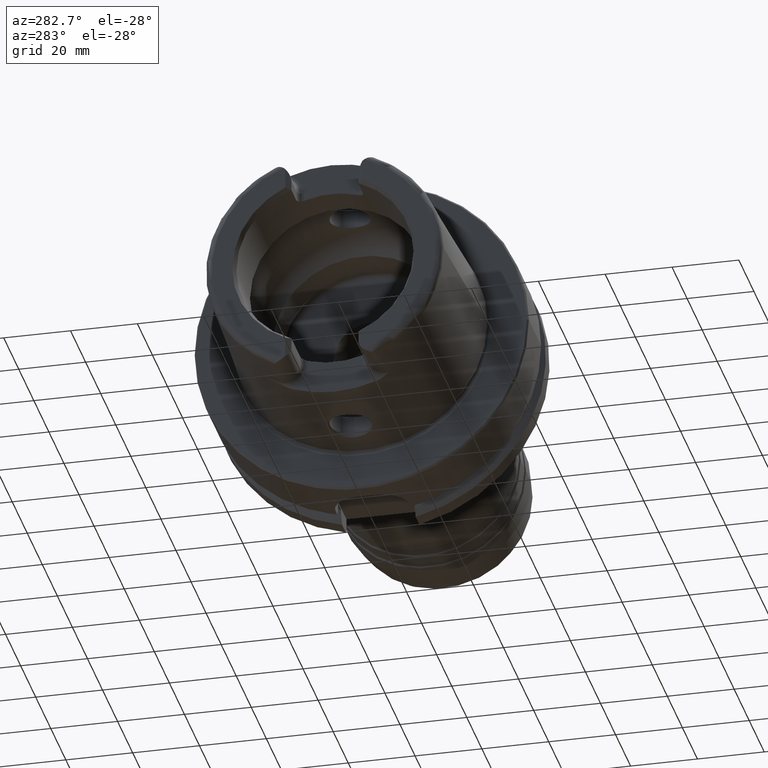
[diagram: clean part render]
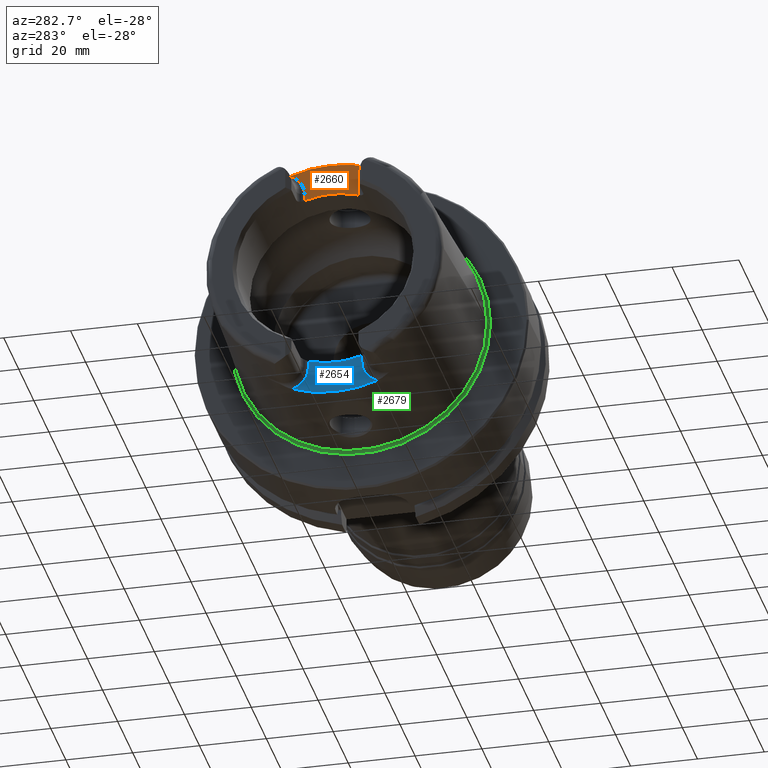
[diagram: same view with three faces highlighted in distinct colors, each labeled with its STEP entity id]
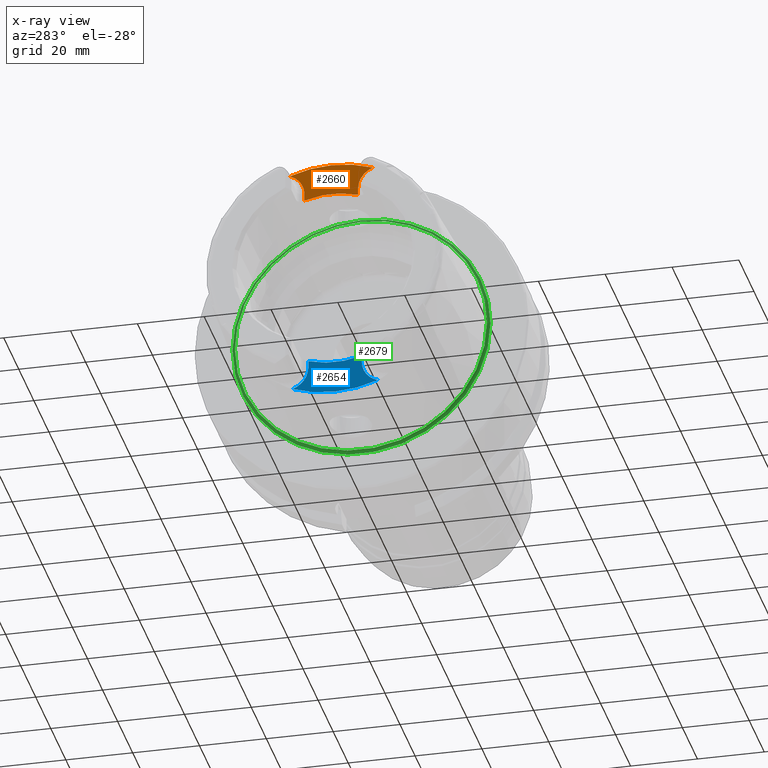
[diagram: x-ray of the same camera — body ghosted, the three highlighted faces saturated]
A machine part, auxiliary view with three faces highlighted in distinct colors.
The next image is the same camera in x-ray (body ghosted, the three faces saturated) — at least one of them is partly hidden behind the body in this view.
Their STEP definitions:

[orange] entity #2660 — the highlighted planar face has unit normal (-1, 0, 0).
#172=PLANE('',#3005);
#282=LINE('',#5490,#397);
#283=LINE('',#5519,#398);
#397=VECTOR('',#3726,10.);
#398=VECTOR('',#3739,10.);
#536=FACE_OUTER_BOUND('',#679,.T.);
#679=EDGE_LOOP('',(#2335,#2336,#2337,#2338,#2339,#2340));
#838=CIRCLE('',#2890,36.003493987976);
#886=CIRCLE('',#2981,6.88);
#888=CIRCLE('',#2984,6.88);
#898=CIRCLE('',#3006,26.5);
#1104=VERTEX_POINT('',#4654);
#1105=VERTEX_POINT('',#4671);
#1203=VERTEX_POINT('',#5487);
#1204=VERTEX_POINT('',#5489);
#1205=VERTEX_POINT('',#5504);
#1206=VERTEX_POINT('',#5508);
#1443=EDGE_CURVE('',#1104,#1105,#838,.T.);
#1588=EDGE_CURVE('',#1203,#1204,#282,.T.);
#1590=EDGE_CURVE('',#1105,#1203,#886,.T.);
#1592=EDGE_CURVE('',#1205,#1104,#888,.T.);
#1594=EDGE_CURVE('',#1206,#1205,#283,.T.);
#1610=EDGE_CURVE('',#1204,#1206,#898,.T.);
#2335=ORIENTED_EDGE('',*,*,#1590,.F.);
#2336=ORIENTED_EDGE('',*,*,#1443,.F.);
#2337=ORIENTED_EDGE('',*,*,#1592,.F.);
#2338=ORIENTED_EDGE('',*,*,#1594,.F.);
#2339=ORIENTED_EDGE('',*,*,#1610,.F.);
#2340=ORIENTED_EDGE('',*,*,#1588,.F.);
#2660=ADVANCED_FACE('',(#536),#172,.T.);
#2890=AXIS2_PLACEMENT_3D('',#4672,#3495,#3496);
#2981=AXIS2_PLACEMENT_3D('',#5502,#3729,#3730);
#2984=AXIS2_PLACEMENT_3D('',#5506,#3735,#3736);
#3005=AXIS2_PLACEMENT_3D('',#5567,#3782,#3783);
#3006=AXIS2_PLACEMENT_3D('',#5568,#3784,#3785);
#3495=DIRECTION('center_axis',(1.,0.,0.));
#3496=DIRECTION('ref_axis',(0.,1.,0.));
#3726=DIRECTION('',(0.,0.,-1.));
#3729=DIRECTION('center_axis',(-1.,0.,0.));
#3730=DIRECTION('ref_axis',(0.,0.564947834751706,0.82512662301574));
#3735=DIRECTION('center_axis',(-1.,0.,0.));
#3736=DIRECTION('ref_axis',(0.,-0.564947834751705,0.825126623015741));
#3739=DIRECTION('',(0.,0.,1.));
#3782=DIRECTION('center_axis',(-1.,0.,0.));
#3783=DIRECTION('ref_axis',(0.,0.,1.));
#3784=DIRECTION('center_axis',(-1.,0.,0.));
#3785=DIRECTION('ref_axis',(0.,1.,0.));
#4654=CARTESIAN_POINT('',(-40.,12.4227760464511,33.7923987701664));
#4671=CARTESIAN_POINT('',(-40.,-12.4227760464511,33.7923987701664));
#4672=CARTESIAN_POINT('Origin',(-40.,0.,0.));
#5487=CARTESIAN_POINT('',(-40.,-8.01,27.37));
#5489=CARTESIAN_POINT('',(-40.,-8.01,25.2604414054862));
#5490=CARTESIAN_POINT('',(-40.,-8.01,23.5));
#5502=CARTESIAN_POINT('Origin',(-40.,-14.89,27.37));
#5504=CARTESIAN_POINT('',(-40.,8.01,27.37));
#5506=CARTESIAN_POINT('Origin',(-40.,14.89,27.37));
#5508=CARTESIAN_POINT('',(-40.,8.01,25.2604414054862));
#5519=CARTESIAN_POINT('',(-40.,8.01,28.185));
#5567=CARTESIAN_POINT('Origin',(-40.,0.,29.));
#5568=CARTESIAN_POINT('Origin',(-40.,0.,0.));

[blue] entity #2654 — the highlighted planar face has unit normal (-1, 0, 0).
#170=PLANE('',#2994);
#284=LINE('',#5537,#399);
#286=LINE('',#5546,#401);
#399=VECTOR('',#3750,10.);
#401=VECTOR('',#3762,10.);
#530=FACE_OUTER_BOUND('',#673,.T.);
#673=EDGE_LOOP('',(#2311,#2312,#2313,#2314,#2315,#2316));
#836=CIRCLE('',#2888,36.25399498998);
#891=CIRCLE('',#2989,6.88);
#893=CIRCLE('',#2995,26.5);
#894=CIRCLE('',#2996,6.88);
#1100=VERTEX_POINT('',#4603);
#1101=VERTEX_POINT('',#4614);
#1207=VERTEX_POINT('',#5522);
#1208=VERTEX_POINT('',#5526);
#1209=VERTEX_POINT('',#5543);
#1210=VERTEX_POINT('',#5545);
#1437=EDGE_CURVE('',#1100,#1101,#836,.T.);
#1597=EDGE_CURVE('',#1207,#1100,#891,.T.);
#1599=EDGE_CURVE('',#1208,#1207,#284,.T.);
#1602=EDGE_CURVE('',#1209,#1208,#893,.T.);
#1603=EDGE_CURVE('',#1210,#1209,#286,.T.);
#1604=EDGE_CURVE('',#1101,#1210,#894,.T.);
#2311=ORIENTED_EDGE('',*,*,#1597,.F.);
#2312=ORIENTED_EDGE('',*,*,#1599,.F.);
#2313=ORIENTED_EDGE('',*,*,#1602,.F.);
#2314=ORIENTED_EDGE('',*,*,#1603,.F.);
#2315=ORIENTED_EDGE('',*,*,#1604,.F.);
#2316=ORIENTED_EDGE('',*,*,#1437,.F.);
#2654=ADVANCED_FACE('',(#530),#170,.T.);
#2888=AXIS2_PLACEMENT_3D('',#4615,#3491,#3492);
#2989=AXIS2_PLACEMENT_3D('',#5524,#3746,#3747);
#2994=AXIS2_PLACEMENT_3D('',#5542,#3758,#3759);
#2995=AXIS2_PLACEMENT_3D('',#5544,#3760,#3761);
#2996=AXIS2_PLACEMENT_3D('',#5547,#3763,#3764);
#3491=DIRECTION('center_axis',(1.,0.,0.));
#3492=DIRECTION('ref_axis',(0.,1.,0.));
#3746=DIRECTION('center_axis',(-1.,0.,0.));
#3747=DIRECTION('ref_axis',(0.,0.510937901715381,-0.8596176246394));
#3750=DIRECTION('',(0.,0.,-1.));
#3758=DIRECTION('center_axis',(-1.,0.,0.));
#3759=DIRECTION('ref_axis',(0.,0.,1.));
#3760=DIRECTION('center_axis',(-1.,0.,0.));
#3761=DIRECTION('ref_axis',(0.,1.,0.));
#3762=DIRECTION('',(0.,0.,1.));
#3763=DIRECTION('center_axis',(-1.,0.,0.));
#3764=DIRECTION('ref_axis',(0.,-0.510937901715381,-0.8596176246394));
#4603=CARTESIAN_POINT('',(-35.,-12.7918651267415,-33.9222690767105));
#4614=CARTESIAN_POINT('',(-35.,12.7918651267415,-33.9222690767105));
#4615=CARTESIAN_POINT('Origin',(-35.,0.,0.));
#5522=CARTESIAN_POINT('',(-35.,-8.01,-27.37));
#5524=CARTESIAN_POINT('Origin',(-35.,-14.89,-27.37));
#5526=CARTESIAN_POINT('',(-35.,-8.01,-25.2604414054862));
#5537=CARTESIAN_POINT('',(-35.,-8.01,-28.685));
#5542=CARTESIAN_POINT('Origin',(-35.,8.88178419700125E-15,-30.));
#5543=CARTESIAN_POINT('',(-35.,8.01,-25.2604414054862));
#5544=CARTESIAN_POINT('Origin',(-35.,0.,0.));
#5545=CARTESIAN_POINT('',(-35.,8.01,-27.37));
#5546=CARTESIAN_POINT('',(-35.,8.01,-25.));
#5547=CARTESIAN_POINT('Origin',(-35.,14.89,-27.37));

[green] entity #2679 — the highlighted toroidal blend (fillet) surface has major radius 38.5073 mm and minor (blend) radius 0.8 mm.
#555=FACE_OUTER_BOUND('',#701,.T.);
#701=EDGE_LOOP('',(#2453,#2454,#2455,#2456,#2457,#2458,#2459,#2460));
#930=CIRCLE('',#3057,37.7073016032064);
#931=CIRCLE('',#3058,0.8);
#932=CIRCLE('',#3059,38.6186400839745);
#933=CIRCLE('',#3060,38.6186400839745);
#934=CIRCLE('',#3061,38.6186400839745);
#935=CIRCLE('',#3062,37.7073016032064);
#936=CIRCLE('',#3063,37.7073016032064);
#1233=VERTEX_POINT('',#5646);
#1234=VERTEX_POINT('',#5647);
#1235=VERTEX_POINT('',#5649);
#1236=VERTEX_POINT('',#5651);
#1237=VERTEX_POINT('',#5653);
#1238=VERTEX_POINT('',#5656);
#1647=EDGE_CURVE('',#1233,#1234,#930,.T.);
#1648=EDGE_CURVE('',#1234,#1235,#931,.T.);
#1649=EDGE_CURVE('',#1236,#1235,#932,.T.);
#1650=EDGE_CURVE('',#1237,#1236,#933,.T.);
#1651=EDGE_CURVE('',#1235,#1237,#934,.T.);
#1652=EDGE_CURVE('',#1234,#1238,#935,.T.);
#1653=EDGE_CURVE('',#1238,#1233,#936,.T.);
#2453=ORIENTED_EDGE('',*,*,#1647,.T.);
#2454=ORIENTED_EDGE('',*,*,#1648,.T.);
#2455=ORIENTED_EDGE('',*,*,#1649,.F.);
#2456=ORIENTED_EDGE('',*,*,#1650,.F.);
#2457=ORIENTED_EDGE('',*,*,#1651,.F.);
#2458=ORIENTED_EDGE('',*,*,#1648,.F.);
#2459=ORIENTED_EDGE('',*,*,#1652,.T.);
#2460=ORIENTED_EDGE('',*,*,#1653,.T.);
#2553=TOROIDAL_SURFACE('',#3056,38.5073016032064,0.8);
#2679=ADVANCED_FACE('',(#555),#2553,.F.);
#3056=AXIS2_PLACEMENT_3D('',#5645,#3889,#3890);
#3057=AXIS2_PLACEMENT_3D('',#5648,#3891,#3892);
#3058=AXIS2_PLACEMENT_3D('',#5650,#3893,#3894);
#3059=AXIS2_PLACEMENT_3D('',#5652,#3895,#3896);
#3060=AXIS2_PLACEMENT_3D('',#5654,#3897,#3898);
#3061=AXIS2_PLACEMENT_3D('',#5655,#3899,#3900);
#3062=AXIS2_PLACEMENT_3D('',#5657,#3901,#3902);
#3063=AXIS2_PLACEMENT_3D('',#5658,#3903,#3904);
#3889=DIRECTION('center_axis',(1.,0.,0.));
#3890=DIRECTION('ref_axis',(0.,0.,-1.));
#3891=DIRECTION('center_axis',(1.,0.,0.));
#3892=DIRECTION('ref_axis',(0.,0.,-1.));
#3893=DIRECTION('center_axis',(0.,-1.,-1.22464679914735E-16));
#3894=DIRECTION('ref_axis',(0.,-1.22464679914735E-16,1.));
#3895=DIRECTION('center_axis',(1.,0.,0.));
#3896=DIRECTION('ref_axis',(0.,0.,-1.));
#3897=DIRECTION('center_axis',(1.,0.,0.));
#3898=DIRECTION('ref_axis',(0.,0.,-1.));
#3899=DIRECTION('center_axis',(1.,0.,0.));
#3900=DIRECTION('ref_axis',(0.,0.,-1.));
#3901=DIRECTION('center_axis',(1.,0.,0.));
#3902=DIRECTION('ref_axis',(0.,0.,-1.));
#3903=DIRECTION('center_axis',(1.,0.,0.));
#3904=DIRECTION('ref_axis',(0.,0.,-1.));
#5645=CARTESIAN_POINT('Origin',(-0.7,0.,0.));
#5646=CARTESIAN_POINT('',(-0.7,37.7073016032064,0.));
#5647=CARTESIAN_POINT('',(-0.7,-4.61781262128506E-15,37.7073016032064));
#5648=CARTESIAN_POINT('Origin',(-0.7,0.,0.));
#5649=CARTESIAN_POINT('',(0.0922144549932559,-4.7294193966263E-15,38.6186400839745));
#5650=CARTESIAN_POINT('Origin',(-0.7,-4.71578436521685E-15,38.5073016032064));
#5651=CARTESIAN_POINT('',(0.0922144549932559,38.6186400839745,0.));
#5652=CARTESIAN_POINT('Origin',(0.0922144549932559,0.,0.));
#5653=CARTESIAN_POINT('',(0.0922144549932577,-38.6186400839745,-4.7294193966263E-15));
#5654=CARTESIAN_POINT('Origin',(0.0922144549932559,0.,0.));
#5655=CARTESIAN_POINT('Origin',(0.0922144549932559,0.,0.));
#5656=CARTESIAN_POINT('',(-0.7,-37.7073016032064,-4.61781262128506E-15));
#5657=CARTESIAN_POINT('Origin',(-0.7,0.,0.));
#5658=CARTESIAN_POINT('Origin',(-0.7,0.,0.));